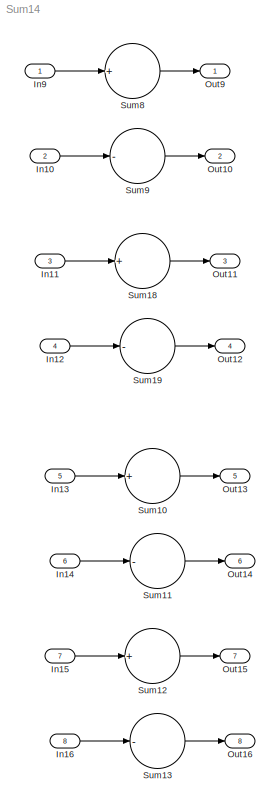
MODEL Sum14
KIND model
BLOCK [Inport] In10
  IconDisplay = Port number
  OutDataTypeStr = int32
  Port = 2
  SID = 2
BLOCK [Inport] In11
  IconDisplay = Port number
  OutDataTypeStr = int32
  Port = 3
  PortDimensions = 3
  SID = 3
BLOCK [Inport] In12
  IconDisplay = Port number
  OutDataTypeStr = int32
  Port = 4
  PortDimensions = 3
  SID = 4
BLOCK [Inport] In13
  IconDisplay = Port number
  OutDataTypeStr = int32
  Port = 5
  PortDimensions = [2 3]
  SID = 5
BLOCK [Inport] In14
  IconDisplay = Port number
  OutDataTypeStr = int32
  Port = 6
  PortDimensions = [2 3]
  SID = 6
BLOCK [Inport] In15
  IconDisplay = Port number
  OutDataTypeStr = int32
  Port = 7
  PortDimensions = [2 3]
  SID = 7
BLOCK [Inport] In16
  IconDisplay = Port number
  OutDataTypeStr = int32
  Port = 8
  PortDimensions = [2 3]
  SID = 8
BLOCK [Inport] In9
  IconDisplay = Port number
  OutDataTypeStr = int32
  SID = 1
BLOCK [Outport] Out10
  IconDisplay = Port number
  Port = 2
  SID = 18
BLOCK [Outport] Out11
  IconDisplay = Port number
  Port = 3
  SID = 19
BLOCK [Outport] Out12
  IconDisplay = Port number
  Port = 4
  SID = 20
BLOCK [Outport] Out13
  IconDisplay = Port number
  Port = 5
  SID = 21
BLOCK [Outport] Out14
  IconDisplay = Port number
  Port = 6
  SID = 22
BLOCK [Outport] Out15
  IconDisplay = Port number
  Port = 7
  SID = 23
BLOCK [Outport] Out16
  IconDisplay = Port number
  Port = 8
  SID = 24
BLOCK [Outport] Out9
  IconDisplay = Port number
  SID = 17
BLOCK [Sum] Sum10
  CollapseMode = Specified dimension
  InputSameDT = off
  Inputs = +
  OutDataTypeStr = Inherit: Inherit via internal rule
  Ports = [1, 1]
  SID = 9
  SaturateOnIntegerOverflow = off
BLOCK [Sum] Sum11
  CollapseMode = Specified dimension
  InputSameDT = off
  Inputs = -
  OutDataTypeStr = Inherit: Inherit via internal rule
  Ports = [1, 1]
  SID = 10
  SaturateOnIntegerOverflow = off
BLOCK [Sum] Sum12
  CollapseDim = 2
  CollapseMode = Specified dimension
  InputSameDT = off
  Inputs = +
  OutDataTypeStr = Inherit: Inherit via internal rule
  Ports = [1, 1]
  SID = 11
  SaturateOnIntegerOverflow = off
BLOCK [Sum] Sum13
  CollapseDim = 2
  CollapseMode = Specified dimension
  InputSameDT = off
  Inputs = -
  OutDataTypeStr = Inherit: Inherit via internal rule
  Ports = [1, 1]
  SID = 12
  SaturateOnIntegerOverflow = off
BLOCK [Sum] Sum18
  CollapseMode = Specified dimension
  InputSameDT = off
  Inputs = +
  OutDataTypeStr = Inherit: Inherit via internal rule
  Ports = [1, 1]
  SID = 13
  SaturateOnIntegerOverflow = off
BLOCK [Sum] Sum19
  CollapseMode = Specified dimension
  InputSameDT = off
  Inputs = -
  OutDataTypeStr = Inherit: Inherit via internal rule
  Ports = [1, 1]
  SID = 14
  SaturateOnIntegerOverflow = off
BLOCK [Sum] Sum8
  CollapseMode = Specified dimension
  InputSameDT = off
  Inputs = +
  OutDataTypeStr = Inherit: Inherit via internal rule
  Ports = [1, 1]
  SID = 15
  SaturateOnIntegerOverflow = off
BLOCK [Sum] Sum9
  CollapseMode = Specified dimension
  InputSameDT = off
  Inputs = -
  OutDataTypeStr = Inherit: Inherit via internal rule
  Ports = [1, 1]
  SID = 16
  SaturateOnIntegerOverflow = off
LINE In10:1 -> Sum9:1
LINE In11:1 -> Sum18:1
LINE In12:1 -> Sum19:1
LINE In13:1 -> Sum10:1
LINE In14:1 -> Sum11:1
LINE In15:1 -> Sum12:1
LINE In16:1 -> Sum13:1
LINE In9:1 -> Sum8:1
LINE Sum10:1 -> Out13:1
LINE Sum11:1 -> Out14:1
LINE Sum12:1 -> Out15:1
LINE Sum13:1 -> Out16:1
LINE Sum18:1 -> Out11:1
LINE Sum19:1 -> Out12:1
LINE Sum8:1 -> Out9:1
LINE Sum9:1 -> Out10:1
